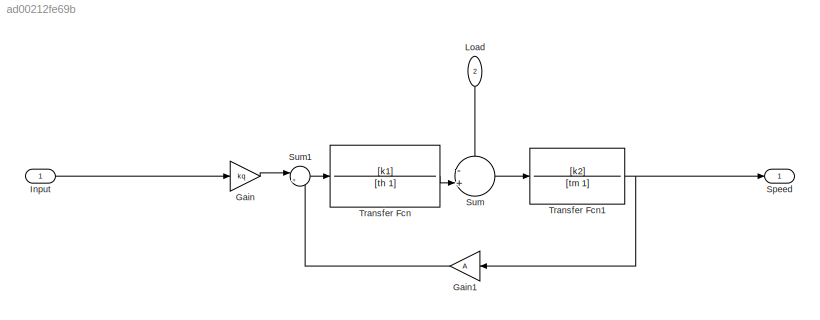
MODEL slx_ad00212fe69b
KIND model
CONFIG AbsTol = auto
CONFIG EnableMultiTasking = off
CONFIG FixedStep = auto
CONFIG MaxStep = auto
CONFIG MinStep = auto
CONFIG RelTol = 1e-3
CONFIG SampleTimeConstraint = Unconstrained
CONFIG SolverName = VariableStepAuto
CONFIG StartTime = 0.0
CONFIG StopTime = 10.0
BLOCK [Gain] Gain
  Gain = kq
BLOCK [Gain] Gain1
  Gain = A
BLOCK [Inport] Input
BLOCK [Inport] Load
  NameLocation = left
  Port = 2
BLOCK [Outport] Speed
BLOCK [Sum] Sum
  Inputs = -+|
  Ports = [2, 1]
BLOCK [Sum] Sum1
  Inputs = |+-
  Ports = [2, 1]
BLOCK [TransferFcn] Transfer Fcn
  Denominator = [th 1]
  Numerator = [k1]
BLOCK [TransferFcn] Transfer Fcn1
  Denominator = [tm 1]
  Numerator = [k2]
LINE Gain1:1 -> Sum1:2
LINE Gain:1 -> Sum1:1
LINE Input:1 -> Gain:1
LINE Load:1 -> Sum:1
LINE Sum1:1 -> Transfer Fcn:1
LINE Sum:1 -> Transfer Fcn1:1
NET Transfer Fcn1:1 -> Gain1:1, Speed:1
LINE Transfer Fcn:1 -> Sum:2
note: NET lines group one-source signal fan-out (src -> all destinations, sorted); 1:1 wires keep LINE
